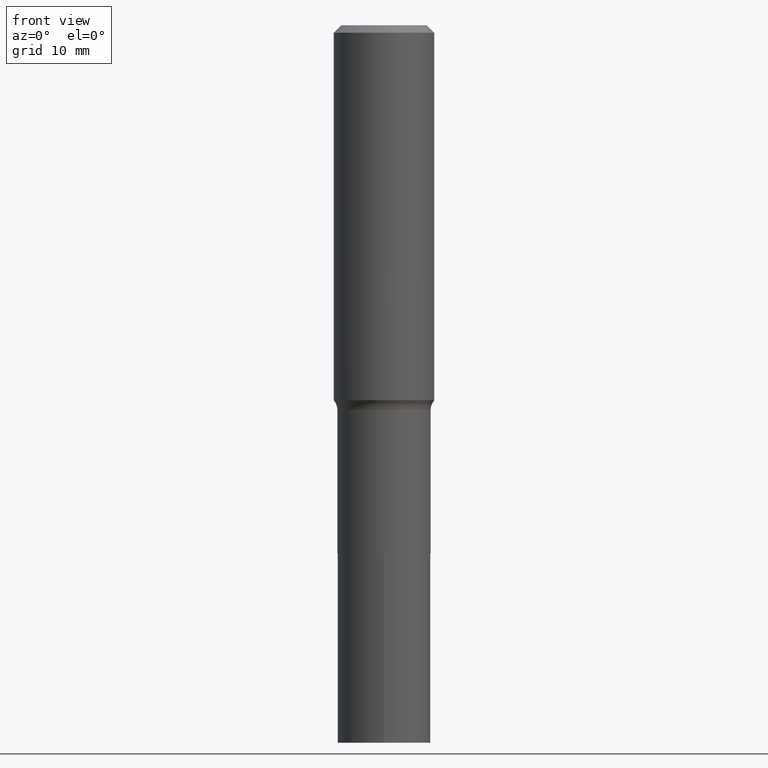
[diagram: clean part render]
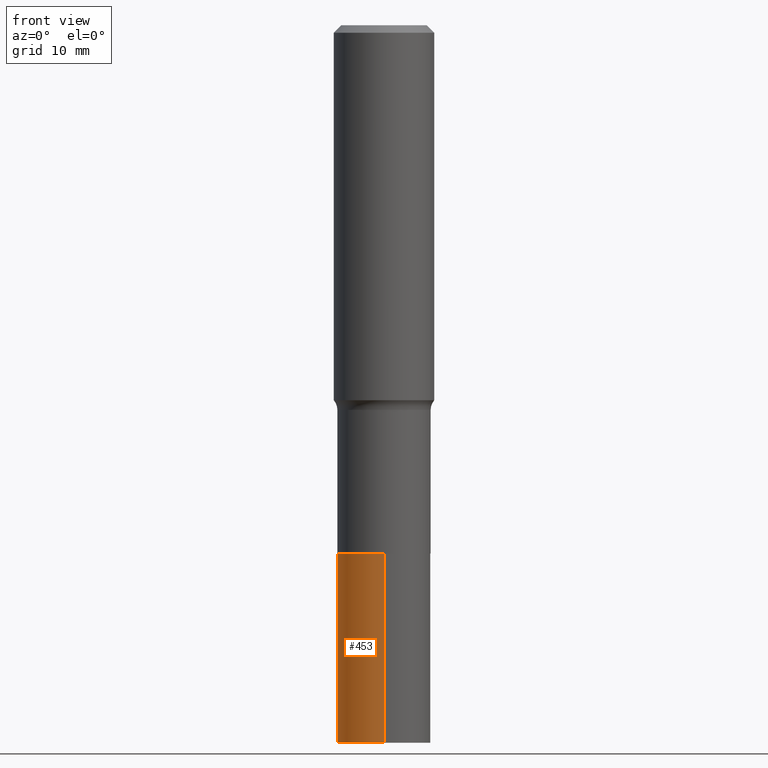
[diagram: same view with one face highlighted and labeled with its STEP entity id]
A machine part, front view. The second image highlights one B-rep face of the part: STEP entity #453.
In plain terms, the highlighted cylindrical surface (partial cylindrical patch) has radius 6.4999 mm, axis along (-0, 0, 1).
Its self-contained STEP definition (entity closure, byte-faithful):
#3 = VERTEX_POINT ( 'NONE', #457 ) ;
#47 = CARTESIAN_POINT ( 'NONE',  ( -1.786940149219819499E-15, -0.2559000000000137831, -3.936999999999999389 ) ) ;
#97 = EDGE_CURVE ( 'NONE', #432, #3, #438, .T. ) ;
#102 = DIRECTION ( 'NONE',  ( -6.982962677686266711E-15, -1.000000000000000000, 4.270180529369696392E-15 ) ) ;
#103 = AXIS2_PLACEMENT_3D ( 'NONE', #134, #421, #102 ) ;
#116 = VERTEX_POINT ( 'NONE', #47 ) ;
#118 = EDGE_CURVE ( 'NONE', #3, #162, #303, .T. ) ;
#129 = CARTESIAN_POINT ( 'NONE',  ( 1.818278860810179717E-15, 0.2558999999999862496, -3.937000000000001609 ) ) ;
#134 = CARTESIAN_POINT ( 'NONE',  ( 7.086968600324526494E-29, -1.011831291996743700E-14, -2.898000000000000131 ) ) ;
#154 = CARTESIAN_POINT ( 'NONE',  ( 9.628292456265703180E-29, -1.374527211424221057E-14, -3.937000000000000721 ) ) ;
#155 = CARTESIAN_POINT ( 'NONE',  ( 7.086968600324526494E-29, -1.011831291996743700E-14, -2.898000000000000131 ) ) ;
#157 = DIRECTION ( 'NONE',  ( -2.445932488875048180E-29, 3.490817318840012660E-15, 1.000000000000000000 ) ) ;
#162 = VERTEX_POINT ( 'NONE', #190 ) ;
#190 = CARTESIAN_POINT ( 'NONE',  ( -1.786940149219844742E-15, -0.2559000000000101194, -2.897999999999998799 ) ) ;
#204 = LINE ( 'NONE', #283, #348 ) ;
#210 = FACE_OUTER_BOUND ( 'NONE', #339, .T. ) ;
#219 = ORIENTED_EDGE ( 'NONE', *, *, #97, .F. ) ;
#228 = DIRECTION ( 'NONE',  ( -2.445932488875048180E-29, 3.490817318840012660E-15, 1.000000000000000000 ) ) ;
#231 = VECTOR ( 'NONE', #157, 39.37007874015748143 ) ;
#256 = DIRECTION ( 'NONE',  ( -6.982962677686266711E-15, -1.000000000000000000, 4.270180529369696392E-15 ) ) ;
#274 = DIRECTION ( 'NONE',  ( -2.445932488875048180E-29, 3.490817318840012660E-15, 1.000000000000000000 ) ) ;
#276 = ORIENTED_EDGE ( 'NONE', *, *, #374, .T. ) ;
#282 = EDGE_CURVE ( 'NONE', #432, #116, #319, .T. ) ;
#283 = CARTESIAN_POINT ( 'NONE',  ( -1.786940149219844742E-15, -0.2559000000000101194, -2.897999999999998799 ) ) ;
#294 = ORIENTED_EDGE ( 'NONE', *, *, #118, .F. ) ;
#303 = CIRCLE ( 'NONE', #460, 0.2559000000000000163 ) ;
#307 = CARTESIAN_POINT ( 'NONE',  ( 1.818278860810167095E-15, 0.2558999999999899133, -2.898000000000001020 ) ) ;
#319 = CIRCLE ( 'NONE', #335, 0.2559000000000000163 ) ;
#335 = AXIS2_PLACEMENT_3D ( 'NONE', #154, #376, #256 ) ;
#339 = EDGE_LOOP ( 'NONE', ( #219, #398, #276, #294 ) ) ;
#348 = VECTOR ( 'NONE', #274, 39.37007874015748143 ) ;
#374 = EDGE_CURVE ( 'NONE', #116, #162, #204, .T. ) ;
#376 = DIRECTION ( 'NONE',  ( -2.445932488875048180E-29, 3.490817318840012660E-15, 1.000000000000000000 ) ) ;
#398 = ORIENTED_EDGE ( 'NONE', *, *, #282, .T. ) ;
#421 = DIRECTION ( 'NONE',  ( -2.445932488875048180E-29, 3.490817318840012660E-15, 1.000000000000000000 ) ) ;
#432 = VERTEX_POINT ( 'NONE', #129 ) ;
#438 = LINE ( 'NONE', #307, #231 ) ;
#440 = DIRECTION ( 'NONE',  ( -6.982962677686266711E-15, -1.000000000000000000, 4.270180529369696392E-15 ) ) ;
#453 = ADVANCED_FACE ( 'NONE', ( #210 ), #459, .T. ) ;
#457 = CARTESIAN_POINT ( 'NONE',  ( 1.818278860810192733E-15, 0.2558999999999899133, -2.898000000000001020 ) ) ;
#459 = CYLINDRICAL_SURFACE ( 'NONE', #103, 0.2559000000000000163 ) ;
#460 = AXIS2_PLACEMENT_3D ( 'NONE', #155, #228, #440 ) ;